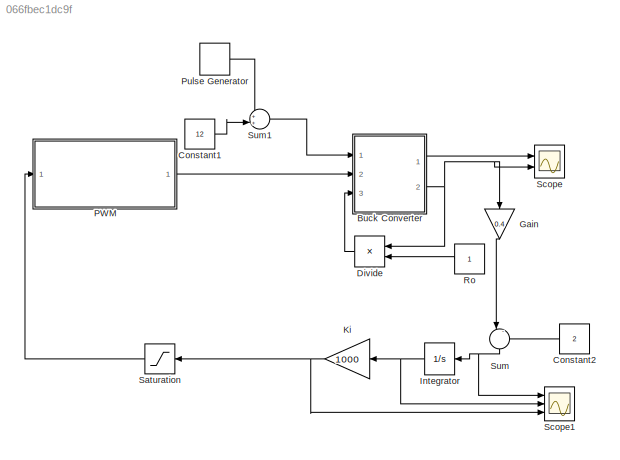
MODEL slx_066fbec1dc9f
KIND model
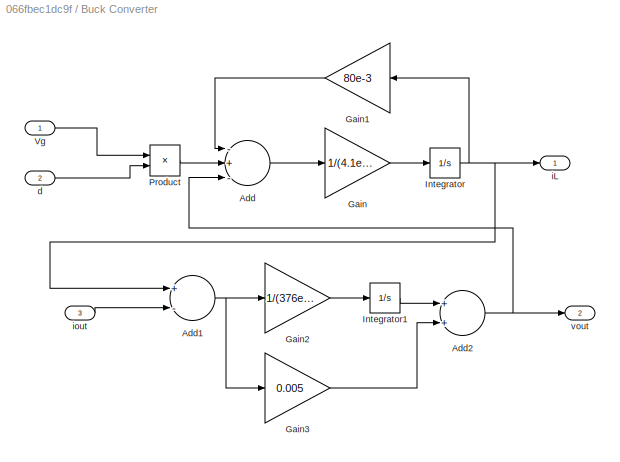
BLOCK [SubSystem] Buck Converter
  FunctionWithSeparateData = off
  MaskHideContents = off
  MinAlgLoopOccurrences = off
  Opaque = off
  Ports = [3, 2]
  PropExecContextOutsideSubsystem = off
  RTWSystemCode = Auto
  RequestExecContextInheritance = off
BLOCK [Sum] Buck Converter/Add
  InputSameDT = off
  Inputs = -+-
  OutDataTypeStr = Inherit: Inherit via internal rule
  Ports = [3, 1]
  SaturateOnIntegerOverflow = off
BLOCK [Sum] Buck Converter/Add1
  InputSameDT = off
  Inputs = +-
  OutDataTypeStr = Inherit: Inherit via internal rule
  Ports = [2, 1]
  SaturateOnIntegerOverflow = off
BLOCK [Sum] Buck Converter/Add2
  InputSameDT = off
  OutDataTypeStr = Inherit: Inherit via internal rule
  Ports = [2, 1]
  SaturateOnIntegerOverflow = off
BLOCK [Gain] Buck Converter/Gain
  Gain = 1/(4.1e-6)
  OutDataTypeStr = Inherit: Inherit via internal rule
  ParamDataTypeStr = Inherit: Inherit via internal rule
  SaturateOnIntegerOverflow = off
BLOCK [Gain] Buck Converter/Gain1
  Gain = 80e-3
  OutDataTypeStr = Inherit: Inherit via internal rule
  ParamDataTypeStr = Inherit: Inherit via internal rule
  SaturateOnIntegerOverflow = off
BLOCK [Gain] Buck Converter/Gain2
  Gain = 1/(376e-6)
  OutDataTypeStr = Inherit: Inherit via internal rule
  ParamDataTypeStr = Inherit: Inherit via internal rule
  SaturateOnIntegerOverflow = off
BLOCK [Gain] Buck Converter/Gain3
  Gain = 0.005
  OutDataTypeStr = Inherit: Inherit via internal rule
  ParamDataTypeStr = Inherit: Inherit via internal rule
  SaturateOnIntegerOverflow = off
BLOCK [Integrator] Buck Converter/Integrator
  Ports = [1, 1]
BLOCK [Integrator] Buck Converter/Integrator1
  Ports = [1, 1]
BLOCK [Product] Buck Converter/Product
  InputSameDT = off
  OutDataTypeStr = Inherit: Inherit via internal rule
  Ports = [2, 1]
  RndMeth = Floor
  SaturateOnIntegerOverflow = off
BLOCK [Inport] Buck Converter/Vg
  IconDisplay = Port number
BLOCK [Inport] Buck Converter/d
  IconDisplay = Port number
  Port = 2
BLOCK [Outport] Buck Converter/iL
  IconDisplay = Port number
BLOCK [Inport] Buck Converter/iout
  IconDisplay = Port number
  Port = 3
BLOCK [Outport] Buck Converter/vout 
  IconDisplay = Port number
  Port = 2
BLOCK [Constant] Constant1
  Value = 12
BLOCK [Constant] Constant2
  Value = 2
BLOCK [Product] Divide
  InputSameDT = off
  Inputs = */
  OutDataTypeStr = Inherit: Inherit via internal rule
  Ports = [2, 1]
  RndMeth = Floor
  SaturateOnIntegerOverflow = off
BLOCK [Gain] Gain
  Gain = 0.4
  OutDataTypeStr = Inherit: Inherit via internal rule
  ParamDataTypeStr = Inherit: Inherit via internal rule
  SaturateOnIntegerOverflow = off
BLOCK [Integrator] Integrator
  LowerSaturationLimit = 0.1/1000
  Ports = [1, 1]
  UpperSaturationLimit = 0.9/1000
BLOCK [Gain] Ki
  Gain = 1000
  OutDataTypeStr = Inherit: Inherit via internal rule
  ParamDataTypeStr = Inherit: Inherit via internal rule
  SaturateOnIntegerOverflow = off
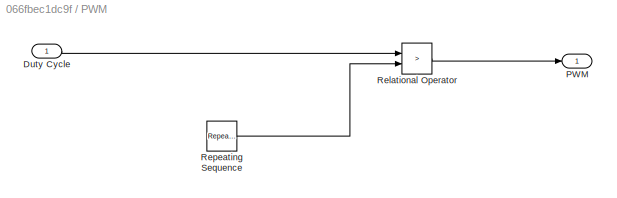
BLOCK [SubSystem] PWM
  FunctionWithSeparateData = off
  MaskHideContents = off
  MinAlgLoopOccurrences = off
  Opaque = off
  Ports = [1, 1]
  PropExecContextOutsideSubsystem = off
  RTWSystemCode = Auto
  RequestExecContextInheritance = off
BLOCK [Inport] PWM/Duty Cycle
  IconDisplay = Port number
BLOCK [Outport] PWM/PWM
  IconDisplay = Port number
BLOCK [RelationalOperator] PWM/Relational Operator
  InputSameDT = off
  Operator = >
  OutDataTypeStr = boolean
  Ports = [2, 1]
BLOCK [Reference] PWM/Repeating Sequence  REF=simulink/Sources/Repeating
Sequence
  Ports = [0, 1]
  SourceBlock = simulink/Sources/Repeating\nSequence
  SourceType = Repeating table
  rep_seq_t = [0 0.001e-5 1e-5]
  rep_seq_y = [1 0 1]
BLOCK [DiscretePulseGenerator] Pulse Generator
  Amplitude = 6
  Period = 0.003
  Ports = [0, 1]
  PulseType = Time based
  PulseWidth = 50
BLOCK [Constant] Ro
BLOCK [Saturate] Saturation
  InputPortMap = u0
  LowerLimit = 0.1
  Ports = [1, 1]
  UpperLimit = 0.9
BLOCK [Scope] Scope
  DataFormat = StructureWithTime
  Floating = off
  LimitDataPoints = off
  NumInputPorts = 2
  Ports = [2]
  SampleTime = 0
  ShowLegends = off
  TimeRange = 0.003
  YMax = 10~6
  YMin = 0~4.5
  ZoomMode = yonly
BLOCK [Scope] Scope1
  DataFormat = StructureWithTime
  Floating = off
  LimitDataPoints = off
  NumInputPorts = 3
  Ports = [3]
  SampleTime = 0
  SaveName = ScopeData1
  ShowLegends = off
  YMax = 10~5.1~5
  YMin = 0~4.9~-5
  ZoomMode = xonly
BLOCK [Sum] Sum
  IconShape = round
  InputSameDT = off
  Inputs = |-+
  OutDataTypeStr = Inherit: Inherit via internal rule
  Ports = [2, 1]
  SaturateOnIntegerOverflow = off
BLOCK [Sum] Sum1
  IconShape = round
  InputSameDT = off
  Inputs = ++|
  OutDataTypeStr = Inherit: Inherit via internal rule
  Ports = [2, 1]
  SaturateOnIntegerOverflow = off
NET Buck Converter/Add1:1 -> Buck Converter/Gain2:1, Buck Converter/Gain3:1
NET Buck Converter/Add2:1 -> Buck Converter/Add:3, Buck Converter/vout :1
LINE Buck Converter/Add:1 -> Buck Converter/Gain:1
LINE Buck Converter/Gain1:1 -> Buck Converter/Add:1
LINE Buck Converter/Gain2:1 -> Buck Converter/Integrator1:1
LINE Buck Converter/Gain3:1 -> Buck Converter/Add2:2
LINE Buck Converter/Gain:1 -> Buck Converter/Integrator:1
LINE Buck Converter/Integrator1:1 -> Buck Converter/Add2:1
NET Buck Converter/Integrator:1 -> Buck Converter/Add1:1, Buck Converter/Gain1:1, Buck Converter/iL:1
LINE Buck Converter/Product:1 -> Buck Converter/Add:2
LINE Buck Converter/Vg:1 -> Buck Converter/Product:1
LINE Buck Converter/d:1 -> Buck Converter/Product:2
LINE Buck Converter/iout:1 -> Buck Converter/Add1:2
LINE Buck Converter:1 -> Scope:1
NET Buck Converter:2 -> Divide:1, Gain:1, Scope:2
LINE Constant1:1 -> Sum1:2
LINE Constant2:1 -> Sum:2
LINE Divide:1 -> Buck Converter:3
LINE Gain:1 -> Sum:1
NET Integrator:1 -> Ki:1, Scope1:2
NET Ki:1 -> Saturation:1, Scope1:3
LINE PWM/Duty Cycle:1 -> PWM/Relational Operator:1
LINE PWM/Relational Operator:1 -> PWM/PWM:1
LINE PWM/Repeating Sequence:1 -> PWM/Relational Operator:2
LINE PWM:1 -> Buck Converter:2
LINE Pulse Generator:1 -> Sum1:1
LINE Ro:1 -> Divide:2
LINE Saturation:1 -> PWM:1
LINE Sum1:1 -> Buck Converter:1
NET Sum:1 -> Integrator:1, Scope1:1
note: NET lines group one-source signal fan-out (src -> all destinations, sorted); 1:1 wires keep LINE
